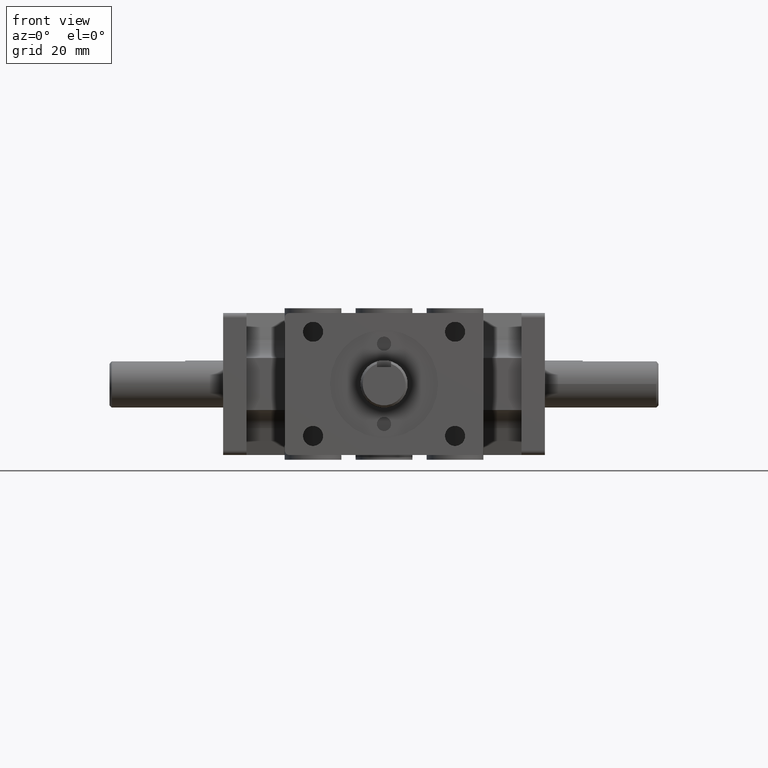
[diagram: clean part render]
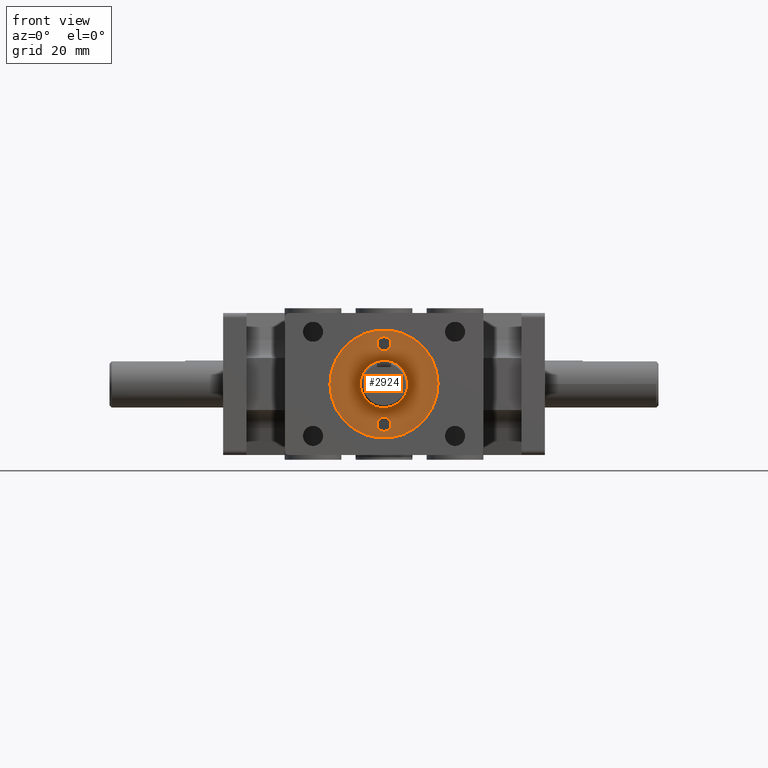
[diagram: same view with one face highlighted and labeled with its STEP entity id]
A machine part, front view. The second image highlights one B-rep face of the part: STEP entity #2924.
In plain terms, the highlighted planar face has unit normal (0, 1, 0).
Its self-contained STEP definition (entity closure, byte-faithful):
#28=FACE_BOUND('',#367,.T.);
#29=FACE_BOUND('',#368,.T.);
#30=FACE_BOUND('',#369,.T.);
#76=PLANE('',#3126);
#194=FACE_OUTER_BOUND('',#366,.T.);
#366=EDGE_LOOP('',(#2036));
#367=EDGE_LOOP('',(#2037));
#368=EDGE_LOOP('',(#2038));
#369=EDGE_LOOP('',(#2039));
#1160=CIRCLE('',#3108,0.0935);
#1162=CIRCLE('',#3112,0.0935);
#1169=CIRCLE('',#3123,0.714);
#1171=CIRCLE('',#3127,0.3125);
#1289=VERTEX_POINT('',#4313);
#1291=VERTEX_POINT('',#4320);
#1298=VERTEX_POINT('',#4341);
#1300=VERTEX_POINT('',#4348);
#1571=EDGE_CURVE('',#1289,#1289,#1160,.T.);
#1574=EDGE_CURVE('',#1291,#1291,#1162,.T.);
#1585=EDGE_CURVE('',#1298,#1298,#1169,.T.);
#1587=EDGE_CURVE('',#1300,#1300,#1171,.T.);
#2036=ORIENTED_EDGE('',*,*,#1585,.T.);
#2037=ORIENTED_EDGE('',*,*,#1587,.T.);
#2038=ORIENTED_EDGE('',*,*,#1571,.T.);
#2039=ORIENTED_EDGE('',*,*,#1574,.T.);
#2924=ADVANCED_FACE('',(#194,#28,#29,#30),#76,.F.);
#3108=AXIS2_PLACEMENT_3D('',#4314,#3429,#3430);
#3112=AXIS2_PLACEMENT_3D('',#4321,#3438,#3439);
#3123=AXIS2_PLACEMENT_3D('',#4343,#3464,#3465);
#3126=AXIS2_PLACEMENT_3D('',#4347,#3470,#3471);
#3127=AXIS2_PLACEMENT_3D('',#4349,#3472,#3473);
#3429=DIRECTION('center_axis',(0.,1.,0.));
#3430=DIRECTION('ref_axis',(1.,0.,0.));
#3438=DIRECTION('center_axis',(0.,1.,0.));
#3439=DIRECTION('ref_axis',(1.,0.,0.));
#3464=DIRECTION('center_axis',(0.,-1.,0.));
#3465=DIRECTION('ref_axis',(1.,0.,0.));
#3470=DIRECTION('center_axis',(0.,1.,0.));
#3471=DIRECTION('ref_axis',(0.,0.,-1.));
#3472=DIRECTION('center_axis',(0.,1.,0.));
#3473=DIRECTION('ref_axis',(1.,0.,0.));
#4313=CARTESIAN_POINT('',(-0.0935000000000001,0.06,-0.53));
#4314=CARTESIAN_POINT('Origin',(-9.7356205128879E-17,0.06,-0.53));
#4320=CARTESIAN_POINT('',(-0.0934999999999998,0.06,0.53));
#4321=CARTESIAN_POINT('Origin',(1.62260341881465E-16,0.06,0.53));
#4341=CARTESIAN_POINT('',(-0.714,0.06,8.7439781459121E-17));
#4343=CARTESIAN_POINT('Origin',(0.,0.06,0.));
#4347=CARTESIAN_POINT('Origin',(0.0540909090909091,0.06,-8.20154589760046E-18));
#4348=CARTESIAN_POINT('',(-0.3125,0.06,-3.82702124733548E-17));
#4349=CARTESIAN_POINT('Origin',(0.,0.06,0.));